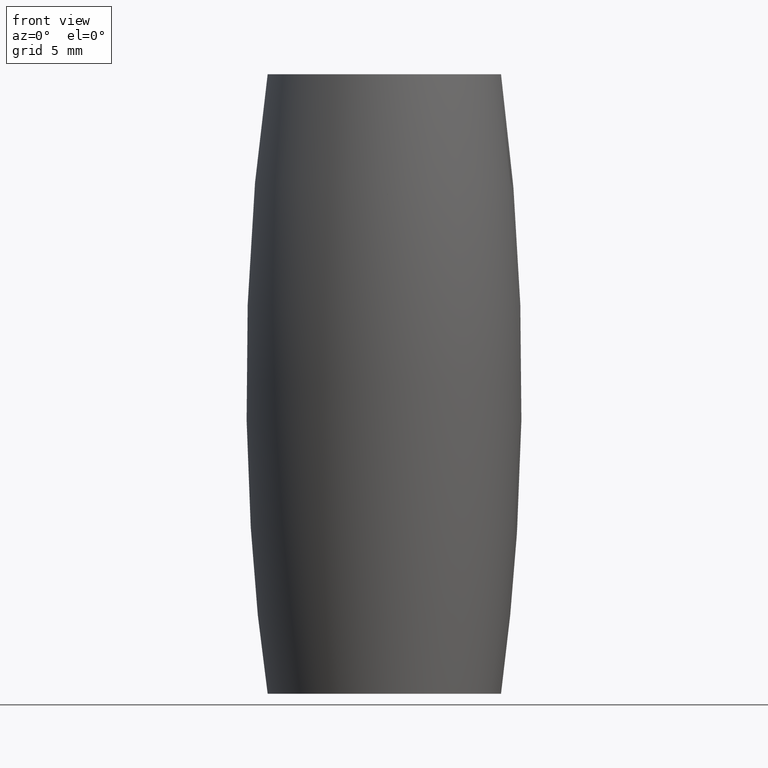
[diagram: clean part render]
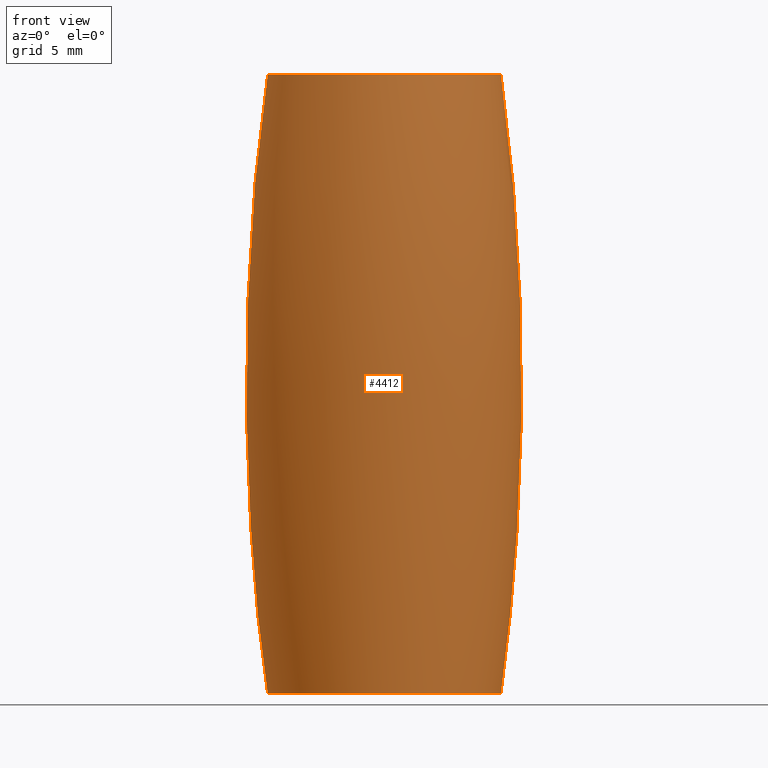
[diagram: same view with one face highlighted and labeled with its STEP entity id]
A machine part, front view. The second image highlights one B-rep face of the part: STEP entity #4412.
In plain terms, the highlighted toroidal blend (fillet) surface has major radius 159.5 mm and minor (blend) radius 169.5 mm.
Its self-contained STEP definition (entity closure, byte-faithful):
#475 = CARTESIAN_POINT ( 'NONE',  ( 2.035252658694706618, 9.362968141120123988, 11.91441738643006865 ) ) ;
#560 = CARTESIAN_POINT ( 'NONE',  ( 2.042417709183697472, 9.278114781444880776, 13.00732877193614456 ) ) ;
#638 = CARTESIAN_POINT ( 'NONE',  ( -1.887849688585928165, 9.417494501219396241, -11.57015386920823730 ) ) ;
#686 = CARTESIAN_POINT ( 'NONE',  ( 0.2672936916137044761, 9.677141153860908673, -10.41248997694784073 ) ) ;
#735 = CARTESIAN_POINT ( 'NONE',  ( 2.028131298163500684, 9.361983929157439377, -11.93844647523517466 ) ) ;
#782 = CARTESIAN_POINT ( 'NONE',  ( 1.879999684279234584, 9.420172821838239230, -11.55435313109971851 ) ) ;
#826 = CARTESIAN_POINT ( 'NONE',  ( 2.098638096226111305, 9.316680278130725412, -12.34204673295914922 ) ) ;
#836 = CARTESIAN_POINT ( 'NONE',  ( -1.655820291022791046, 9.291350315609474109, 13.79890560751662854 ) ) ;
#927 = ORIENTED_EDGE ( 'NONE', *, *, #8246, .T. ) ;
#1190 = B_SPLINE_CURVE_WITH_KNOTS ( 'NONE', 3,
 ( #10031, #5410, #5276, #4319, #4355, #1408, #11115, #12074, #5363, #7196, #2330, #1492, #8164, #4390, #11072, #9195, #10956, #6244, #9048, #475, #7162, #1451, #2414, #560, #9116, #1535, #11911, #4280, #3384, #9991, #7274, #6205, #10072, #6448, #7493, #12255, #1662, #5630, #10240, #8379, #12114, #8291, #836, #10333, #12163, #1704, #2631, #1753, #6401, #4564, #11156, #2587, #8425, #9417, #11237, #5493 ),
 .UNSPECIFIED., .T., .F.,
 ( 4, 2, 2, 2, 2, 2, 2, 2, 2, 2, 2, 2, 2, 2, 2, 2, 2, 2, 2, 2, 2, 2, 2, 2, 2, 2, 2, 4 ),
 ( 0.000000000000000000, 0.0004120401601087151505, 0.0008240803202174303010, 0.001236120480326145885, 0.001648160640434861253, 0.002472240960652292638, 0.002884281120761009523, 0.003296321280869726408, 0.003708361440978442860, 0.004120401601087159311, 0.004944481921304593082, 0.005356522081413309100, 0.005768562241522025985, 0.006180602401630742870, 0.006592642561739459756, 0.007416722881956890057, 0.007828763042065605207, 0.008240803202174320358, 0.008652843362283035508, 0.009064883522391750659, 0.009888963842609180960, 0.01030100400271789785, 0.01071304416282661473, 0.01112508432293533162, 0.01153712448304404677, 0.01236120480326147533, 0.01277324496337018875, 0.01318528512347890216 ),
 .UNSPECIFIED. ) ;
#1408 = CARTESIAN_POINT ( 'NONE',  ( -0.7033628770729929425, 9.648679449203564573, 10.51652647756440828 ) ) ;
#1451 = CARTESIAN_POINT ( 'NONE',  ( 2.102179480775155263, 9.296353905152916042, 12.60024029624566033 ) ) ;
#1492 = CARTESIAN_POINT ( 'NONE',  ( 0.9070086199758630174, 9.626379876503552424, 10.60104125979470524 ) ) ;
#1535 = CARTESIAN_POINT ( 'NONE',  ( 1.902844482614313604, 9.276603583189155344, 13.39901732923575040 ) ) ;
#1607 = CARTESIAN_POINT ( 'NONE',  ( 1.590975172190963516, 9.296306500823108721, -13.87756313695614629 ) ) ;
#1650 = CARTESIAN_POINT ( 'NONE',  ( -0.5382020843951443867, 9.361204865041642620, -14.53453094379538690 ) ) ;
#1662 = CARTESIAN_POINT ( 'NONE',  ( -0.2486964449059936300, 9.368601809961845106, 14.58975234323748005 ) ) ;
#1696 = CARTESIAN_POINT ( 'NONE',  ( 2.088753506910224544, 9.287369422731824642, -12.75680433449369211 ) ) ;
#1704 = CARTESIAN_POINT ( 'NONE',  ( -1.986330492676351200, 9.275497209786628616, 13.19531718526063813 ) ) ;
#1753 = CARTESIAN_POINT ( 'NONE',  ( -2.083940914450997273, 9.285596182402644061, 12.79374989004662133 ) ) ;
#1766 = EDGE_CURVE ( 'NONE', #9976, #9976, #11610, .T. ) ;
#2034 = CARTESIAN_POINT ( 'NONE',  ( 8.500000000000007105, 0.000000000000000000, 22.50000000000001776 ) ) ;
#2115 = CARTESIAN_POINT ( 'NONE',  ( -1.502090670531797567, 9.522839498379259027, 11.03244297640558180 ) ) ;
#2330 = CARTESIAN_POINT ( 'NONE',  ( 0.5260230824162330787, 9.666743892736828769, 10.44862596009021516 ) ) ;
#2414 = CARTESIAN_POINT ( 'NONE',  ( 2.091088676389360579, 9.288366693471770574, 12.73706692957391873 ) ) ;
#2528 = CARTESIAN_POINT ( 'NONE',  ( -1.888052587681325445, 9.277158042157942930, -13.42958945801672144 ) ) ;
#2542 = ORIENTED_EDGE ( 'NONE', *, *, #10746, .T. ) ;
#2578 = CARTESIAN_POINT ( 'NONE',  ( -1.276889360173035559, 9.320075022491010941, -14.17283242274289989 ) ) ;
#2587 = CARTESIAN_POINT ( 'NONE',  ( -1.896891951900369300, 9.414369682327084377, 11.58877056887215673 ) ) ;
#2624 = CARTESIAN_POINT ( 'NONE',  ( 1.050751293968195998, 9.610470315454683998, -10.66138765375840336 ) ) ;
#2631 = CARTESIAN_POINT ( 'NONE',  ( -2.027472725570291789, 9.276903266016974570, 13.06431647140043140 ) ) ;
#2661 = CARTESIAN_POINT ( 'NONE',  ( -1.671649718278924501, 9.482259910306160222, -11.22169805648675833 ) ) ;
#2706 = CARTESIAN_POINT ( 'NONE',  ( -0.9250622019487807490, 9.343230673504464789, -14.39032141711393642 ) ) ;
#2938 = CARTESIAN_POINT ( 'NONE',  ( 0.000000000000000000, 0.000000000000000000, 0.000000000000000000 ) ) ;
#3384 = CARTESIAN_POINT ( 'NONE',  ( 1.603582952389210003, 9.295355584066227195, 13.86285183998346682 ) ) ;
#3508 = CARTESIAN_POINT ( 'NONE',  ( -0.5538618388729914521, 9.661425231131371305, -10.46969209077488117 ) ) ;
#3527 = CARTESIAN_POINT ( 'NONE',  ( 0.000000000000000000, 0.000000000000000000, 22.50000000000001776 ) ) ;
#3554 = CARTESIAN_POINT ( 'NONE',  ( 1.662106605853932217, 9.484783400307916779, -11.20926249306150346 ) ) ;
#3578 = CIRCLE ( 'NONE', #6757, 8.500000000000007105 ) ;
#3594 = CARTESIAN_POINT ( 'NONE',  ( -1.296206994627529863, 9.568701522912263613, -10.82523058893852053 ) ) ;
#3643 = CARTESIAN_POINT ( 'NONE',  ( -2.031940587405404841, 9.360158575740166853, -11.95224110273570695 ) ) ;
#3690 = CARTESIAN_POINT ( 'NONE',  ( -1.822464746299257587, 9.438998427604699870, -11.44781613398222042 ) ) ;
#3957 = EDGE_LOOP ( 'NONE', ( #11821 ) ) ;
#3981 = CARTESIAN_POINT ( 'NONE',  ( -1.481982829096401222, 9.304563041214374053, -13.98785983690270207 ) ) ;
#4280 = CARTESIAN_POINT ( 'NONE',  ( 1.690657802272759413, 9.288833462217636949, 13.75328630748366621 ) ) ;
#4319 = CARTESIAN_POINT ( 'NONE',  ( -1.077398083729376843, 9.602855419726434860, 10.69231210557855150 ) ) ;
#4355 = CARTESIAN_POINT ( 'NONE',  ( -0.9558622020550525678, 9.620126816786402912, 10.62510960274209104 ) ) ;
#4390 = CARTESIAN_POINT ( 'NONE',  ( 1.260036956662383911, 9.572803008899715138, 10.81444004633469547 ) ) ;
#4412 = ADVANCED_FACE ( 'NONE', ( #7229, #10385, #12334, #6504 ), #7862, .T. ) ;
#4465 = CARTESIAN_POINT ( 'NONE',  ( -1.668254476377547535, 9.290440625566473543, -13.78300458479448132 ) ) ;
#4555 = CARTESIAN_POINT ( 'NONE',  ( -1.481982829096401000, 9.304563041214372276, -13.98785983690269852 ) ) ;
#4564 = CARTESIAN_POINT ( 'NONE',  ( -2.102253357572275494, 9.323356659098683608, 12.24382678600035312 ) ) ;
#4596 = CARTESIAN_POINT ( 'NONE',  ( 1.894280377628748235, 9.276909596693695192, -13.41696526644765441 ) ) ;
#4641 = CARTESIAN_POINT ( 'NONE',  ( 0.1305962157822824488, 9.680767486241263597, -10.39955321229771990 ) ) ;
#5220 = CARTESIAN_POINT ( 'NONE',  ( -1.481982829096401000, 9.304563041214372276, -13.98785983690269852 ) ) ;
#5276 = CARTESIAN_POINT ( 'NONE',  ( -1.301709854176076764, 9.565122627384930354, 10.84649656486523028 ) ) ;
#5363 = CARTESIAN_POINT ( 'NONE',  ( -0.1644666545859709839, 9.680103501419987211, 10.40193831603641605 ) ) ;
#5410 = CARTESIAN_POINT ( 'NONE',  ( -1.405948058772270581, 9.544502577747923766, 10.93403799599068726 ) ) ;
#5422 = DIRECTION ( 'NONE',  ( 1.000000000000000000, 0.000000000000000000, 0.000000000000000000 ) ) ;
#5446 = CARTESIAN_POINT ( 'NONE',  ( 1.815097693190652617, 9.441303152020610767, -11.43509528819943100 ) ) ;
#5486 = CARTESIAN_POINT ( 'NONE',  ( -0.1280242616255264088, 9.370121550251880649, -14.60060121590964144 ) ) ;
#5493 = CARTESIAN_POINT ( 'NONE',  ( -1.502090670531797345, 9.522839498379259027, 11.03244297640558003 ) ) ;
#5508 = EDGE_LOOP ( 'NONE', ( #8374 ) ) ;
#5574 = CARTESIAN_POINT ( 'NONE',  ( 1.998167791897724754, 9.275710020511887421, -13.16064281148235793 ) ) ;
#5621 = CARTESIAN_POINT ( 'NONE',  ( -0.2678043348400466206, 9.368277971731048481, -14.58740472432853608 ) ) ;
#5630 = CARTESIAN_POINT ( 'NONE',  ( -0.5191229728457176229, 9.361856726711170751, 14.53946711590044139 ) ) ;
#6205 = CARTESIAN_POINT ( 'NONE',  ( 0.7066018761702456130, 9.354379286432740415, 14.48230721525486686 ) ) ;
#6244 = CARTESIAN_POINT ( 'NONE',  ( 1.805306003792829239, 9.444316783902689139, 11.41864540429082986 ) ) ;
#6392 = CARTESIAN_POINT ( 'NONE',  ( -0.2843449098457667690, 9.676498843322203669, -10.41479950242988828 ) ) ;
#6401 = CARTESIAN_POINT ( 'NONE',  ( -2.098759531272794021, 9.292940832648447724, 12.65486091708459959 ) ) ;
#6437 = CARTESIAN_POINT ( 'NONE',  ( 0.6718689726639693882, 9.651596953424025571, -10.50569924686535650 ) ) ;
#6448 = CARTESIAN_POINT ( 'NONE',  ( 0.3032012854277917890, 9.367615113500248114, 14.58258550742611703 ) ) ;
#6485 = CARTESIAN_POINT ( 'NONE',  ( 1.986632522213303220, 9.380511737142906981, -11.80578242946801737 ) ) ;
#6504 = FACE_OUTER_BOUND ( 'NONE', #3957, .T. ) ;
#6576 = CARTESIAN_POINT ( 'NONE',  ( -2.100393146215865592, 9.283798727650342641, -12.77086986075957675 ) ) ;
#6703 = CARTESIAN_POINT ( 'NONE',  ( -1.580538771984170143, 9.297096877218741895, -13.88969318743581383 ) ) ;
#6757 = AXIS2_PLACEMENT_3D ( 'NONE', #3527, #7418, #5422 ) ;
#6763 = CARTESIAN_POINT ( 'NONE',  ( 0.000000000000000000, 0.000000000000000000, -22.50000000000000000 ) ) ;
#7162 = CARTESIAN_POINT ( 'NONE',  ( 2.094591814458222956, 9.329480636367335933, 12.18454496938747944 ) ) ;
#7196 = CARTESIAN_POINT ( 'NONE',  ( 0.2480632780421702654, 9.681577795363994099, 10.39664243390850018 ) ) ;
#7229 = FACE_BOUND ( 'NONE', #8236, .T. ) ;
#7274 = CARTESIAN_POINT ( 'NONE',  ( 1.084514337174007137, 9.334717839516162741, 14.31910447217837579 ) ) ;
#7358 = CARTESIAN_POINT ( 'NONE',  ( 1.573743734340753875, 9.507123321705689634, -11.10294553046447774 ) ) ;
#7402 = CARTESIAN_POINT ( 'NONE',  ( -0.1445900438636748553, 9.680512225066273402, -10.40047010053179832 ) ) ;
#7418 = DIRECTION ( 'NONE',  ( -0.000000000000000000, -0.000000000000000000, 1.000000000000000000 ) ) ;
#7439 = CARTESIAN_POINT ( 'NONE',  ( -1.066402867659731246, 9.608250375592779946, -10.67000853140003436 ) ) ;
#7493 = CARTESIAN_POINT ( 'NONE',  ( 0.1667467612491599083, 9.369749535332072554, 14.59789852964715529 ) ) ;
#7534 = CARTESIAN_POINT ( 'NONE',  ( 1.284275318000014376, 9.570869436401499897, -10.81644452527399203 ) ) ;
#7862 = TOROIDAL_SURFACE ( 'NONE', #8715, -159.4999999999996021, 169.4999999999996305 ) ;
#8164 = CARTESIAN_POINT ( 'NONE',  ( 1.030131907074749886, 9.609813059766539212, 10.66488862910674484 ) ) ;
#8236 = EDGE_LOOP ( 'NONE', ( #2542 ) ) ;
#8246 = EDGE_CURVE ( 'NONE', #12219, #12219, #8307, .T. ) ;
#8281 = CARTESIAN_POINT ( 'NONE',  ( -2.045596920536489449, 9.274836623086091691, -13.04868003054200010 ) ) ;
#8291 = CARTESIAN_POINT ( 'NONE',  ( -1.567678269938191260, 9.298074110161460126, 13.90411675403279368 ) ) ;
#8307 = B_SPLINE_CURVE_WITH_KNOTS ( 'NONE', 3,
 ( #4555, #11147, #2578, #8416, #2706, #12246, #1650, #5621, #5486, #8372, #12105, #12195, #10324, #1607, #12153, #11228, #4596, #5574, #9275, #1696, #11274, #826, #9231, #735, #6485, #782, #5446, #3554, #7358, #7534, #2624, #6437, #9408, #686, #4641, #7402, #6392, #3508, #9319, #7439, #3594, #10274, #2661, #3690, #638, #10366, #3643, #11316, #12294, #6576, #8281, #2528, #10186, #4465, #6703, #5220 ),
 .UNSPECIFIED., .T., .F.,
 ( 4, 2, 2, 2, 2, 2, 2, 2, 2, 2, 2, 2, 2, 2, 2, 2, 2, 2, 2, 2, 2, 2, 2, 2, 2, 2, 2, 4 ),
 ( 0.000000000000000000, 0.0004120006656733438523, 0.0008240013313466877046, 0.001236001997020031665, 0.001648002662693375409, 0.002472003994040063764, 0.003296005325386750819, 0.003708005991060092394, 0.004120006656733433970, 0.004532007322406775979, 0.004944007988080117988, 0.005356008653753459130, 0.005768009319426801139, 0.006180009985100142281, 0.006592010650773484290, 0.007416011982120166574, 0.007828012647793508583, 0.008240013313466848857, 0.008652013979140190866, 0.009064014644813532876, 0.009888015976160218629, 0.01030001664183356411, 0.01071201730750690959, 0.01112401797318025506, 0.01153601863885360054, 0.01236001997020028456, 0.01277202063587362657, 0.01318402130154696858 ),
 .UNSPECIFIED. ) ;
#8372 = CARTESIAN_POINT ( 'NONE',  ( 0.2845743669857142000, 9.369864370847576396, -14.59873298659882401 ) ) ;
#8374 = ORIENTED_EDGE ( 'NONE', *, *, #10443, .F. ) ;
#8379 = CARTESIAN_POINT ( 'NONE',  ( -1.037113241718897516, 9.337869913709777592, 14.34694714455526920 ) ) ;
#8416 = CARTESIAN_POINT ( 'NONE',  ( -1.048437952207980084, 9.335637700567485098, -14.32471713234488142 ) ) ;
#8425 = CARTESIAN_POINT ( 'NONE',  ( -1.832906247637086539, 9.435715451985208446, 11.46602011037613167 ) ) ;
#8571 = DIRECTION ( 'NONE',  ( 1.000000000000000000, 0.000000000000000000, 0.000000000000000000 ) ) ;
#8715 = AXIS2_PLACEMENT_3D ( 'NONE', #2938, #10467, #11372 ) ;
#9048 = CARTESIAN_POINT ( 'NONE',  ( 1.871344170469928070, 9.423093656197615076, 11.53726374787378717 ) ) ;
#9116 = CARTESIAN_POINT ( 'NONE',  ( 2.004140955541637403, 9.275879726962807936, 13.14223696063257840 ) ) ;
#9195 = CARTESIAN_POINT ( 'NONE',  ( 1.561507013217997786, 9.510063505245154758, 11.08923975808090745 ) ) ;
#9231 = CARTESIAN_POINT ( 'NONE',  ( 2.083787763310711139, 9.330185898531487609, -12.20591245989891327 ) ) ;
#9275 = CARTESIAN_POINT ( 'NONE',  ( 2.037555883835402426, 9.277674646198793340, -13.02650327548102283 ) ) ;
#9290 = EDGE_LOOP ( 'NONE', ( #927 ) ) ;
#9319 = CARTESIAN_POINT ( 'NONE',  ( -0.6848370954186706605, 9.650429082509099032, -10.51002032282641174 ) ) ;
#9408 = CARTESIAN_POINT ( 'NONE',  ( 0.5388720337853473152, 9.662540225382773684, -10.46560550897232211 ) ) ;
#9417 = CARTESIAN_POINT ( 'NONE',  ( -1.683511023163139830, 9.479105500503985482, 11.23728452941217348 ) ) ;
#9466 = AXIS2_PLACEMENT_3D ( 'NONE', #6763, #10647, #8571 ) ;
#9976 = VERTEX_POINT ( 'NONE', #10696 ) ;
#9991 = CARTESIAN_POINT ( 'NONE',  ( 1.316993867881497859, 9.317053770204967833, 14.15858398753909597 ) ) ;
#10031 = CARTESIAN_POINT ( 'NONE',  ( -1.502090670531797345, 9.522839498379259027, 11.03244297640558003 ) ) ;
#10072 = CARTESIAN_POINT ( 'NONE',  ( 0.5734717856841046180, 9.359939996106177773, 14.52490086825273252 ) ) ;
#10186 = CARTESIAN_POINT ( 'NONE',  ( -1.822275348980497034, 9.280437149437053890, -13.55284676712966707 ) ) ;
#10240 = CARTESIAN_POINT ( 'NONE',  ( -0.6510964154787717284, 9.356807011030202403, 14.50131903140980150 ) ) ;
#10274 = CARTESIAN_POINT ( 'NONE',  ( -1.585833858778424865, 9.504208897917418852, -11.11656866428468149 ) ) ;
#10324 = CARTESIAN_POINT ( 'NONE',  ( 1.301358531142038144, 9.318245812129090311, -14.17092631577162187 ) ) ;
#10333 = CARTESIAN_POINT ( 'NONE',  ( -1.811016508714885731, 9.281080976244000524, 13.57196819848496361 ) ) ;
#10366 = CARTESIAN_POINT ( 'NONE',  ( -1.992237010414241949, 9.378152826421464638, -11.82207524902971940 ) ) ;
#10385 = FACE_BOUND ( 'NONE', #9290, .T. ) ;
#10443 = EDGE_CURVE ( 'NONE', #11912, #11912, #3578, .T. ) ;
#10451 = VERTEX_POINT ( 'NONE', #2115 ) ;
#10467 = DIRECTION ( 'NONE',  ( -0.000000000000000000, -0.000000000000000000, 1.000000000000000000 ) ) ;
#10647 = DIRECTION ( 'NONE',  ( -0.000000000000000000, -0.000000000000000000, 1.000000000000000000 ) ) ;
#10696 = CARTESIAN_POINT ( 'NONE',  ( 8.499999999999996447, 0.000000000000000000, -22.50000000000000000 ) ) ;
#10746 = EDGE_CURVE ( 'NONE', #10451, #10451, #1190, .T. ) ;
#10956 = CARTESIAN_POINT ( 'NONE',  ( 1.650924931667345996, 9.487696623394407780, 11.19504620810124074 ) ) ;
#11072 = CARTESIAN_POINT ( 'NONE',  ( 1.366206207180532317, 9.552545110044061261, 10.89936599687186991 ) ) ;
#11115 = CARTESIAN_POINT ( 'NONE',  ( -0.5730122804594817154, 9.659975140479218680, 10.47501364381619204 ) ) ;
#11147 = CARTESIAN_POINT ( 'NONE',  ( -1.383426886208631412, 9.312029205210002658, -14.08602648636958143 ) ) ;
#11156 = CARTESIAN_POINT ( 'NONE',  ( -2.049568952792245380, 9.355910258467563523, 11.96762821158325885 ) ) ;
#11228 = CARTESIAN_POINT ( 'NONE',  ( 1.830427853846216202, 9.279993460543822792, -13.53849740192298690 ) ) ;
#11237 = CARTESIAN_POINT ( 'NONE',  ( -1.598233282291323887, 9.501176419010594287, 11.13084795682047101 ) ) ;
#11274 = CARTESIAN_POINT ( 'NONE',  ( 2.101184838114203757, 9.295113838934085493, -12.61938747664397553 ) ) ;
#11316 = CARTESIAN_POINT ( 'NONE',  ( -2.085936057437010493, 9.328567269122386207, -12.22126513572614570 ) ) ;
#11372 = DIRECTION ( 'NONE',  ( 1.000000000000000000, 0.000000000000000000, 0.000000000000000000 ) ) ;
#11610 = CIRCLE ( 'NONE', #9466, 8.499999999999996447 ) ;
#11821 = ORIENTED_EDGE ( 'NONE', *, *, #1766, .T. ) ;
#11911 = CARTESIAN_POINT ( 'NONE',  ( 1.840150559697641741, 9.279474258800995301, 13.52122293871430259 ) ) ;
#11912 = VERTEX_POINT ( 'NONE', #2034 ) ;
#12074 = CARTESIAN_POINT ( 'NONE',  ( -0.3040281571599078303, 9.675726010661755083, 10.41757840581166050 ) ) ;
#12105 = CARTESIAN_POINT ( 'NONE',  ( 0.5616939357139725253, 9.361656463926333771, -14.54201073112353626 ) ) ;
#12114 = CARTESIAN_POINT ( 'NONE',  ( -1.270889324991933966, 9.320548082092617648, 14.19454312178522315 ) ) ;
#12153 = CARTESIAN_POINT ( 'NONE',  ( 1.679226520488767305, 9.289652290118263878, -13.76851932378819221 ) ) ;
#12163 = CARTESIAN_POINT ( 'NONE',  ( -1.878483044808463065, 9.277547120134562064, 13.44882889111882918 ) ) ;
#12195 = CARTESIAN_POINT ( 'NONE',  ( 1.067561672565469078, 9.335843781349410619, -14.32910359977524450 ) ) ;
#12219 = VERTEX_POINT ( 'NONE', #3981 ) ;
#12246 = CARTESIAN_POINT ( 'NONE',  ( -0.6696567115698688344, 9.356015115608316890, -14.49514787074125799 ) ) ;
#12255 = CARTESIAN_POINT ( 'NONE',  ( -0.1087826019349431711, 9.370272978410373099, 14.60170146990457773 ) ) ;
#12294 = CARTESIAN_POINT ( 'NONE',  ( -2.099800145784142202, 9.315070637431917433, -12.36001853587167965 ) ) ;
#12334 = FACE_OUTER_BOUND ( 'NONE', #5508, .T. ) ;